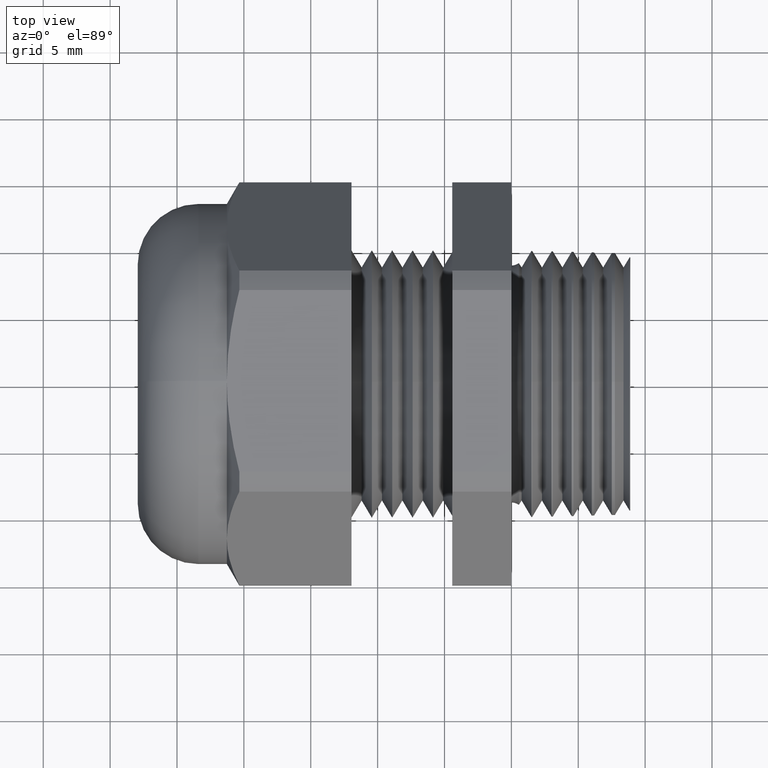
[diagram: clean part render]
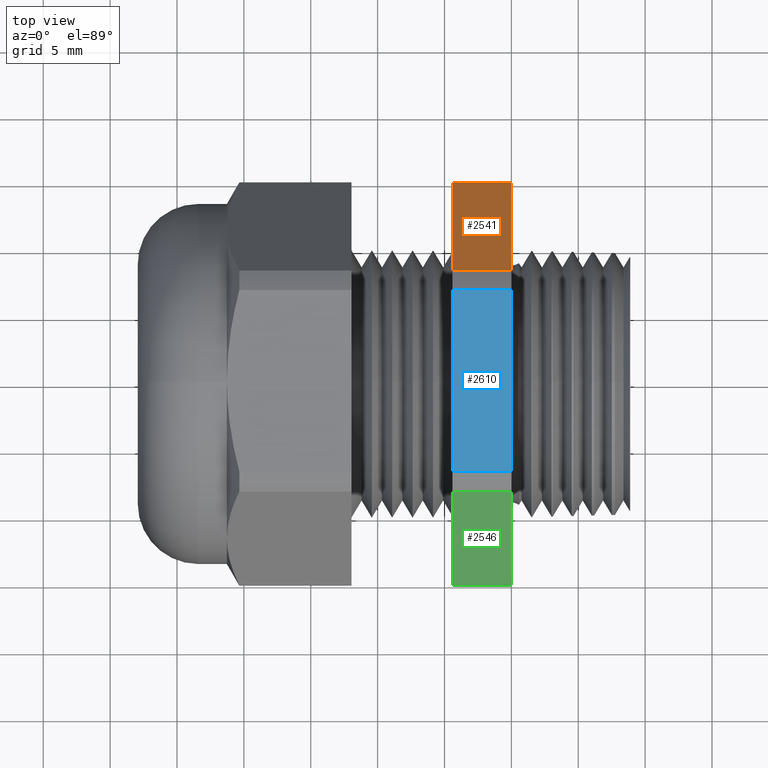
[diagram: same view with three faces highlighted in distinct colors, each labeled with its STEP entity id]
A machine part, top view with three faces highlighted in distinct colors.
Their STEP definitions:

[orange] entity #2541 — the highlighted planar face has unit normal (0, 0.866, 0.5).
#946 = CARTESIAN_POINT ( 'NONE',  ( 0.0000000000000000000, 0.5926543782626886300, 0.03349250552087906800 ) ) ;
#947 = CARTESIAN_POINT ( 'NONE',  ( 0.0000000000000000000, 0.3253325497488160900, 0.4965074944791208500 ) ) ;
#949 = DIRECTION ( 'NONE',  ( 0.0000000000000000000, -0.4999999999999998900, 0.8660254037844386000 ) ) ;
#950 = VECTOR ( 'NONE', #949, 39.37007874015748900 ) ;
#951 = CARTESIAN_POINT ( 'NONE',  ( 0.0000000000000000000, 0.5926543782626886300, 0.03349250552087901200 ) ) ;
#952 = LINE ( 'NONE', #951, #950 ) ;
#971 = DIRECTION ( 'NONE',  ( 0.0000000000000000000, -0.4999999999999998900, 0.8660254037844386000 ) ) ;
#972 = DIRECTION ( 'NONE',  ( 0.0000000000000000000, 0.8660254037844387100, 0.4999999999999999400 ) ) ;
#973 = CARTESIAN_POINT ( 'NONE',  ( -2.533243884661831900, 0.5926543782626886300, 0.03349250552087901200 ) ) ;
#974 = AXIS2_PLACEMENT_3D ( 'NONE', #973, #972, #971 ) ;
#975 = PLANE ( 'NONE',  #974 ) ;
#976 = FACE_OUTER_BOUND ( 'NONE', #2542, .T. ) ;
#1289 = DIRECTION ( 'NONE',  ( 1.000000000000000000, 0.0000000000000000000, 0.0000000000000000000 ) ) ;
#1290 = VECTOR ( 'NONE', #1289, 39.37007874015748100 ) ;
#1291 = CARTESIAN_POINT ( 'NONE',  ( -2.533243884661831900, 0.5926543782626886300, 0.03349250552087906800 ) ) ;
#1292 = LINE ( 'NONE', #1291, #1290 ) ;
#1293 = CARTESIAN_POINT ( 'NONE',  ( -0.1741293532338308300, 0.5926543782626887400, 0.03349250552087897800 ) ) ;
#1323 = LINE ( 'NONE', #1378, #1377 ) ;
#1325 = CARTESIAN_POINT ( 'NONE',  ( -0.1741293532338308300, 0.3253325497488160900, 0.4965074944791208500 ) ) ;
#1376 = DIRECTION ( 'NONE',  ( 1.000000000000000000, 0.0000000000000000000, 0.0000000000000000000 ) ) ;
#1377 = VECTOR ( 'NONE', #1376, 39.37007874015748100 ) ;
#1378 = CARTESIAN_POINT ( 'NONE',  ( -2.533243884661831900, 0.3253325497488160900, 0.4965074944791208500 ) ) ;
#1481 = DIRECTION ( 'NONE',  ( 0.0000000000000000000, -0.4999999999999998900, 0.8660254037844386000 ) ) ;
#1482 = VECTOR ( 'NONE', #1481, 39.37007874015748900 ) ;
#1483 = CARTESIAN_POINT ( 'NONE',  ( -0.1741293532338308300, 0.5577434640057523700, 0.09395998275257327900 ) ) ;
#1484 = LINE ( 'NONE', #1483, #1482 ) ;
#2517 = EDGE_CURVE ( 'NONE', #2520, #2518, #952, .T. ) ;
#2518 = VERTEX_POINT ( 'NONE', #947 ) ;
#2520 = VERTEX_POINT ( 'NONE', #946 ) ;
#2537 = ORIENTED_EDGE ( 'NONE', *, *, #2816, .T. ) ;
#2540 = ORIENTED_EDGE ( 'NONE', *, *, #2752, .T. ) ;
#2541 = ADVANCED_FACE ( 'NONE', ( #976 ), #975, .T. ) ;
#2542 = EDGE_LOOP ( 'NONE', ( #2537, #2540, #2621, #2618 ) ) ;
#2618 = ORIENTED_EDGE ( 'NONE', *, *, #2728, .F. ) ;
#2621 = ORIENTED_EDGE ( 'NONE', *, *, #2517, .F. ) ;
#2726 = VERTEX_POINT ( 'NONE', #1293 ) ;
#2728 = EDGE_CURVE ( 'NONE', #2726, #2520, #1292, .T. ) ;
#2747 = VERTEX_POINT ( 'NONE', #1325 ) ;
#2752 = EDGE_CURVE ( 'NONE', #2747, #2518, #1323, .T. ) ;
#2816 = EDGE_CURVE ( 'NONE', #2726, #2747, #1484, .T. ) ;

[blue] entity #2610 — the highlighted planar face has unit normal (0, 0, 1).
#1113 = DIRECTION ( 'NONE',  ( 1.000000000000000000, 0.0000000000000000000, 0.0000000000000000000 ) ) ;
#1114 = DIRECTION ( 'NONE',  ( 0.0000000000000000000, 0.0000000000000000000, 1.000000000000000000 ) ) ;
#1115 = CARTESIAN_POINT ( 'NONE',  ( -2.533243884661831900, 0.2673218285138724300, 0.5299999999999999200 ) ) ;
#1116 = AXIS2_PLACEMENT_3D ( 'NONE', #1115, #1114, #1113 ) ;
#1117 = PLANE ( 'NONE',  #1116 ) ;
#1118 = FACE_OUTER_BOUND ( 'NONE', #2603, .T. ) ;
#1197 = DIRECTION ( 'NONE',  ( 0.0000000000000000000, -1.000000000000000000, 0.0000000000000000000 ) ) ;
#1198 = VECTOR ( 'NONE', #1197, 39.37007874015748100 ) ;
#1199 = CARTESIAN_POINT ( 'NONE',  ( 0.0000000000000000000, 0.2673218285138724300, 0.5299999999999999200 ) ) ;
#1200 = LINE ( 'NONE', #1199, #1198 ) ;
#1201 = CARTESIAN_POINT ( 'NONE',  ( 0.0000000000000000000, 0.2673218285138723200, 0.5300000000000000300 ) ) ;
#1207 = CARTESIAN_POINT ( 'NONE',  ( 0.0000000000000000000, -0.2673218285138724300, 0.5299999999999999200 ) ) ;
#1314 = CARTESIAN_POINT ( 'NONE',  ( -0.1741293532338308300, -0.2673218285138724300, 0.5299999999999999200 ) ) ;
#1327 = CARTESIAN_POINT ( 'NONE',  ( -0.1741293532338308300, 0.2673218285138724300, 0.5299999999999999200 ) ) ;
#1333 = DIRECTION ( 'NONE',  ( 1.000000000000000000, 0.0000000000000000000, 0.0000000000000000000 ) ) ;
#1334 = VECTOR ( 'NONE', #1333, 39.37007874015748100 ) ;
#1335 = CARTESIAN_POINT ( 'NONE',  ( -2.533243884661831900, 0.2673218285138723200, 0.5300000000000000300 ) ) ;
#1336 = LINE ( 'NONE', #1335, #1334 ) ;
#1471 = LINE ( 'NONE', #1535, #1534 ) ;
#1472 = DIRECTION ( 'NONE',  ( 1.000000000000000000, 0.0000000000000000000, 0.0000000000000000000 ) ) ;
#1473 = VECTOR ( 'NONE', #1472, 39.37007874015748100 ) ;
#1474 = CARTESIAN_POINT ( 'NONE',  ( -2.533243884661831900, -0.2673218285138724300, 0.5299999999999999200 ) ) ;
#1475 = LINE ( 'NONE', #1474, #1473 ) ;
#1533 = DIRECTION ( 'NONE',  ( 0.0000000000000000000, -1.000000000000000000, 0.0000000000000000000 ) ) ;
#1534 = VECTOR ( 'NONE', #1533, 39.37007874015748100 ) ;
#1535 = CARTESIAN_POINT ( 'NONE',  ( -0.1741293532338308300, 0.3950000000000000200, 0.5299999999999999200 ) ) ;
#2539 = ORIENTED_EDGE ( 'NONE', *, *, #2738, .F. ) ;
#2548 = ORIENTED_EDGE ( 'NONE', *, *, #2681, .F. ) ;
#2593 = ORIENTED_EDGE ( 'NONE', *, *, #2818, .T. ) ;
#2595 = ORIENTED_EDGE ( 'NONE', *, *, #2821, .T. ) ;
#2603 = EDGE_LOOP ( 'NONE', ( #2595, #2593, #2548, #2539 ) ) ;
#2610 = ADVANCED_FACE ( 'NONE', ( #1118 ), #1117, .T. ) ;
#2672 = VERTEX_POINT ( 'NONE', #1207 ) ;
#2680 = VERTEX_POINT ( 'NONE', #1201 ) ;
#2681 = EDGE_CURVE ( 'NONE', #2680, #2672, #1200, .T. ) ;
#2715 = VERTEX_POINT ( 'NONE', #1314 ) ;
#2738 = EDGE_CURVE ( 'NONE', #2744, #2680, #1336, .T. ) ;
#2744 = VERTEX_POINT ( 'NONE', #1327 ) ;
#2818 = EDGE_CURVE ( 'NONE', #2715, #2672, #1475, .T. ) ;
#2821 = EDGE_CURVE ( 'NONE', #2744, #2715, #1471, .T. ) ;

[green] entity #2546 — the highlighted planar face has unit normal (0, -0.866, 0.5).
#965 = DIRECTION ( 'NONE',  ( 0.0000000000000000000, -0.5000000000000002200, -0.8660254037844384900 ) ) ;
#966 = DIRECTION ( 'NONE',  ( 0.0000000000000000000, -0.8660254037844386000, 0.5000000000000003300 ) ) ;
#967 = CARTESIAN_POINT ( 'NONE',  ( -2.533243884661831900, -0.3253325497488158100, 0.4965074944791210100 ) ) ;
#968 = AXIS2_PLACEMENT_3D ( 'NONE', #967, #966, #965 ) ;
#969 = PLANE ( 'NONE',  #968 ) ;
#970 = FACE_OUTER_BOUND ( 'NONE', #2543, .T. ) ;
#1202 = CARTESIAN_POINT ( 'NONE',  ( 0.0000000000000000000, -0.3253325497488157000, 0.4965074944791210700 ) ) ;
#1203 = DIRECTION ( 'NONE',  ( 0.0000000000000000000, -0.5000000000000002200, -0.8660254037844384900 ) ) ;
#1204 = VECTOR ( 'NONE', #1203, 39.37007874015748900 ) ;
#1205 = CARTESIAN_POINT ( 'NONE',  ( 0.0000000000000000000, -0.3253325497488158100, 0.4965074944791210100 ) ) ;
#1206 = LINE ( 'NONE', #1205, #1204 ) ;
#1218 = CARTESIAN_POINT ( 'NONE',  ( 0.0000000000000000000, -0.5926543782626886300, 0.03349250552087911600 ) ) ;
#1245 = CARTESIAN_POINT ( 'NONE',  ( -0.1741293532338308300, -0.5926543782626886300, 0.03349250552087911600 ) ) ;
#1247 = DIRECTION ( 'NONE',  ( 1.000000000000000000, 0.0000000000000000000, 0.0000000000000000000 ) ) ;
#1248 = VECTOR ( 'NONE', #1247, 39.37007874015748100 ) ;
#1249 = CARTESIAN_POINT ( 'NONE',  ( -2.533243884661831900, -0.5926543782626886300, 0.03349250552087911600 ) ) ;
#1254 = LINE ( 'NONE', #1249, #1248 ) ;
#1460 = CARTESIAN_POINT ( 'NONE',  ( -0.1741293532338308300, -0.3253325497488160900, 0.4965074944791210100 ) ) ;
#1485 = DIRECTION ( 'NONE',  ( 1.000000000000000000, 0.0000000000000000000, 0.0000000000000000000 ) ) ;
#1486 = VECTOR ( 'NONE', #1485, 39.37007874015748100 ) ;
#1487 = CARTESIAN_POINT ( 'NONE',  ( -2.533243884661831900, -0.3253325497488157000, 0.4965074944791210700 ) ) ;
#1488 = LINE ( 'NONE', #1487, #1486 ) ;
#1525 = DIRECTION ( 'NONE',  ( 0.0000000000000000000, -0.5000000000000002200, -0.8660254037844384900 ) ) ;
#1526 = VECTOR ( 'NONE', #1525, 39.37007874015748900 ) ;
#1527 = CARTESIAN_POINT ( 'NONE',  ( -0.1741293532338308300, -0.3602434640057521900, 0.4360400172474267500 ) ) ;
#1528 = LINE ( 'NONE', #1527, #1526 ) ;
#2529 = ORIENTED_EDGE ( 'NONE', *, *, #2684, .T. ) ;
#2543 = EDGE_LOOP ( 'NONE', ( #2544, #2529, #2605, #2604 ) ) ;
#2544 = ORIENTED_EDGE ( 'NONE', *, *, #2827, .T. ) ;
#2546 = ADVANCED_FACE ( 'NONE', ( #970 ), #969, .T. ) ;
#2604 = ORIENTED_EDGE ( 'NONE', *, *, #2815, .F. ) ;
#2605 = ORIENTED_EDGE ( 'NONE', *, *, #2674, .F. ) ;
#2669 = VERTEX_POINT ( 'NONE', #1218 ) ;
#2674 = EDGE_CURVE ( 'NONE', #2678, #2669, #1206, .T. ) ;
#2678 = VERTEX_POINT ( 'NONE', #1202 ) ;
#2684 = EDGE_CURVE ( 'NONE', #2687, #2669, #1254, .T. ) ;
#2687 = VERTEX_POINT ( 'NONE', #1245 ) ;
#2801 = VERTEX_POINT ( 'NONE', #1460 ) ;
#2815 = EDGE_CURVE ( 'NONE', #2801, #2678, #1488, .T. ) ;
#2827 = EDGE_CURVE ( 'NONE', #2801, #2687, #1528, .T. ) ;